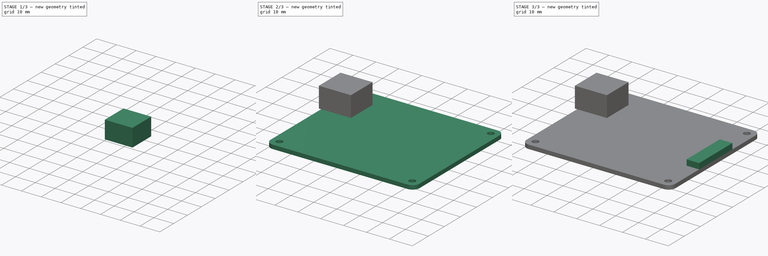
[diagram: build sequence overview — one tinted view per stage of 3, left to right]
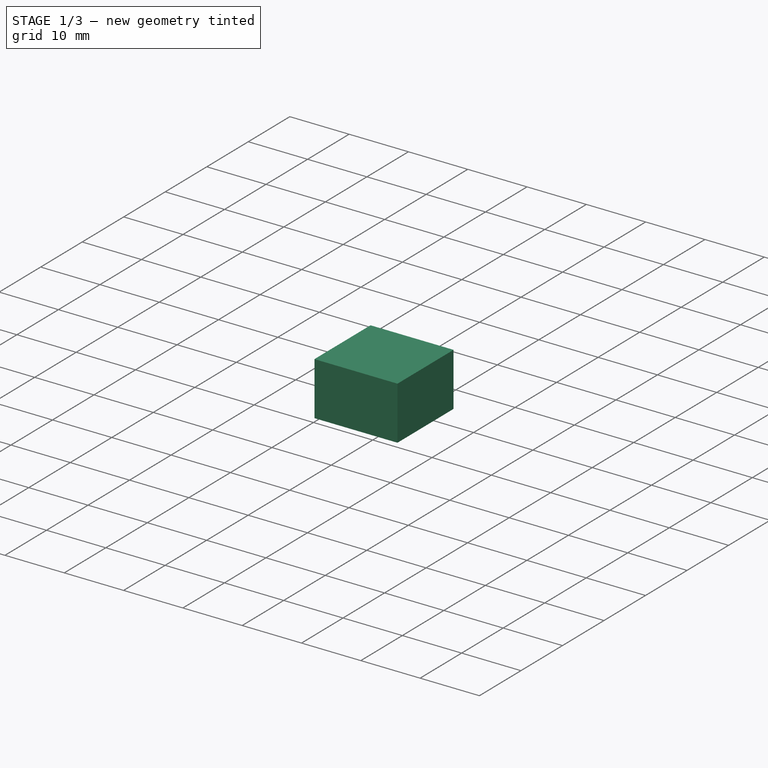
[diagram: stage 1 of 3 — iso view after this stage's code; geometry added in this stage tinted green]
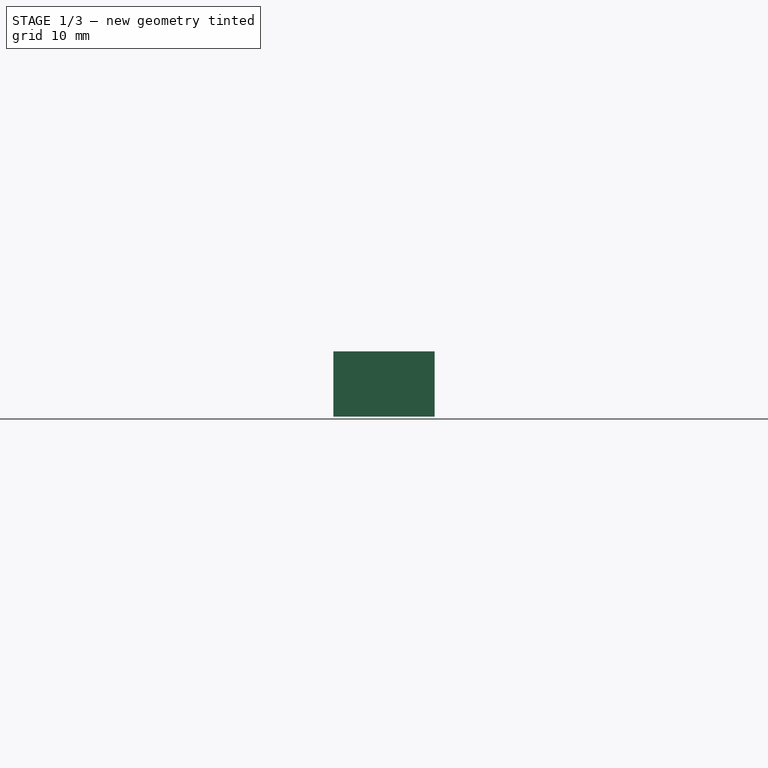
[diagram: stage 1 of 3 — front view after this stage's code; geometry added in this stage tinted green]
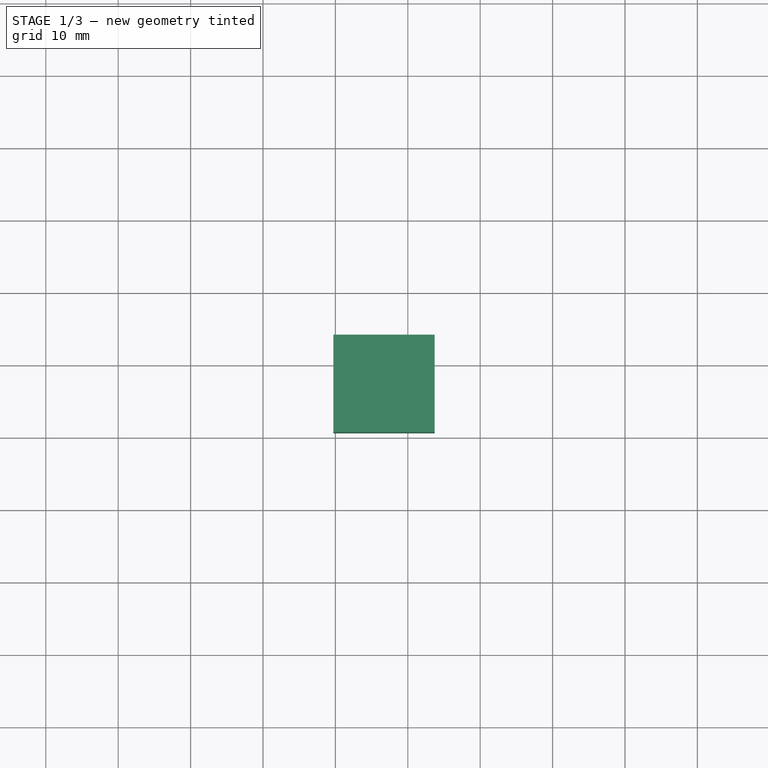
[diagram: stage 1 of 3 — top view after this stage's code; geometry added in this stage tinted green]
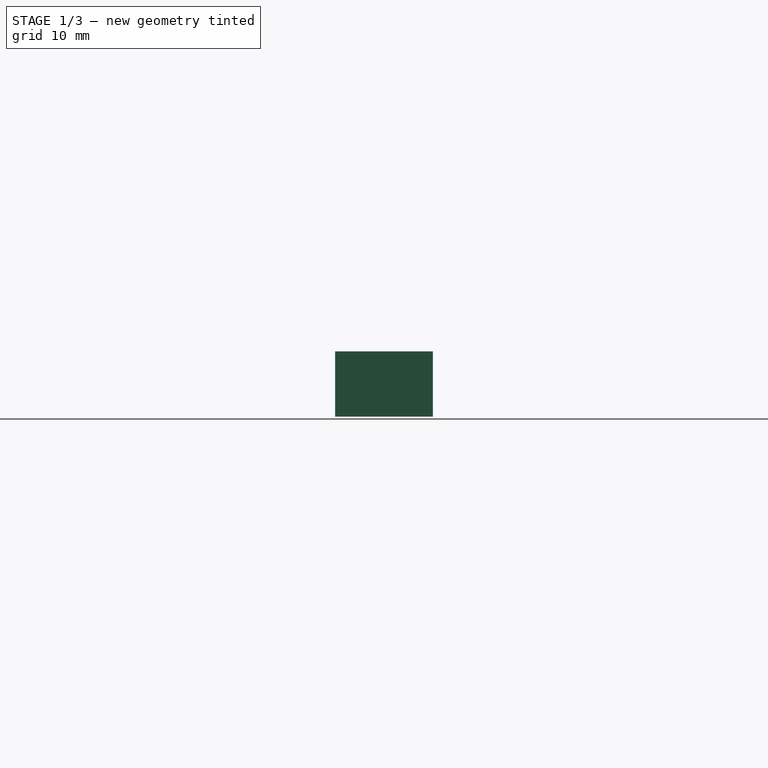
[diagram: stage 1 of 3 — right view after this stage's code; geometry added in this stage tinted green]
FCSTD DOCUMENT  (FreeCAD 0.18R15619 (Git))
Label: touchscreen-board
License: All rights reserved
LicenseURL: http://en.wikipedia.org/wiki/All_rights_reserved
objects: Sketcher::SketchObject×3, PartDesign::Pad×3, PartDesign::Body×3, PartDesign::ShapeBinder×2, Part::Fuse×2
note: 16 computed .brp shape members not serialized (recipe doc carries the construction recipe); baked Part::Feature solids carry a one-line shape summary decoded from their .brp

FEATURE [Sketcher::SketchObject] Sketch002  label="sk-board"
  MapMode = 5
  Support = -> [XY_Plane005]
  sketch-geometry (12):
    g0: LineSegment StartX=-6.2873 StartY=32.162 StartZ=0 EndX=52.7127 EndY=32.162 EndZ=0
    g1: LineSegment StartX=55.7127 StartY=29.162 StartZ=0 EndX=55.7127 EndY=-20.838 EndZ=0
    g2: LineSegment StartX=52.7127 StartY=-23.838 StartZ=0 EndX=-6.2873 EndY=-23.838 EndZ=0
    g3: LineSegment StartX=-9.2873 StartY=-20.838 StartZ=0 EndX=-9.2873 EndY=29.162 EndZ=0
    g4: ArcOfCircle CenterX=-6.2873 CenterY=29.162 CenterZ=0 NormalX=0 NormalY=0 NormalZ=1 AngleXU=0 Radius=3 StartAngle=1.5708 EndAngle=3.14159
    g5: ArcOfCircle CenterX=52.7127 CenterY=29.162 CenterZ=0 NormalX=0 NormalY=0 NormalZ=1 AngleXU=0 Radius=3 StartAngle=0 EndAngle=1.5708
    g6: ArcOfCircle CenterX=52.7127 CenterY=-20.838 CenterZ=0 NormalX=0 NormalY=0 NormalZ=1 AngleXU=0 Radius=3 StartAngle=4.71239 EndAngle=6.28319
    g7: ArcOfCircle CenterX=-6.2873 CenterY=-20.838 CenterZ=0 NormalX=0 NormalY=0 NormalZ=1 AngleXU=0 Radius=3 StartAngle=3.14159 EndAngle=4.71239
    g8: Circle CenterX=-5.7873 CenterY=28.662 CenterZ=0 NormalX=0 NormalY=0 NormalZ=1 AngleXU=0 Radius=1.375
    g9: Circle CenterX=-5.7873 CenterY=-20.338 CenterZ=0 NormalX=0 NormalY=0 NormalZ=1 AngleXU=0 Radius=1.375
    g10: Circle CenterX=52.2127 CenterY=-20.338 CenterZ=0 NormalX=0 NormalY=0 NormalZ=1 AngleXU=0 Radius=1.375
    g11: Circle CenterX=52.2127 CenterY=28.662 CenterZ=0 NormalX=0 NormalY=0 NormalZ=1 AngleXU=0 Radius=1.375
  constraints (30):
    c: Horizontal(g0)
    c: Horizontal(g2)
    c: Vertical(g1)
    c: Vertical(g3)
    c: Tangent(g0,g4) = 1.5708
    c: Tangent(g3,g4) = 1.5708
    c: Tangent(g0,g5) = 1.5708
    c: Tangent(g1,g5) = 1.5708
    c: Tangent(g1,g6) = 1.5708
    c: Tangent(g2,g6) = 1.5708
    c: Tangent(g2,g7) = 1.5708
    c: Tangent(g3,g7) = 1.5708
    c: Radius(g4) = 3
    c: Equal(g4,g5)
    c: Equal(g4,g6)
    c: Equal(g4,g7)
    c: Distance(g1,g3) = 65
    c: Distance(g0,g2) = 56
    c: Radius(g8) = 1.375
    c: Distance(g8,g3) = 3.5
    c: Distance(g8,g0) = 3.5
    c: Equal(g8,g9)
    c: Equal(g9,g10)
    c: Equal(g10,g11)
    c: Vertical(g8,g9)
    c: Horizontal(g8,g11)
    c: Vertical(g11,g10)
    c: Horizontal(g10,g9)
    c: Distance(g10,g1) = 3.5
    c: Distance(g10,g2) = 3.5
FEATURE [PartDesign::Pad] Pad
  Length = 1.75
  Length2 = 100
  Profile = -> Sketch002
  Type = 0
FEATURE [PartDesign::Body] Body002  label="board"
  Group = -> [Sketch002,Pad]
  Origin = -> Origin005
  Tip = -> Pad
FEATURE [PartDesign::ShapeBinder] ShapeBinder  label="BoardTopBinder-usb"
  Placement = pos=(0,0,1.75) rot=(0,0,1;0rad)
  Support = -> [Pad]
  TraceSupport = false
FEATURE [Sketcher::SketchObject] Sketch  label="sk-usb"
  ExternalGeometry = -> [ShapeBinder]
  MapMode = 5
  Placement = pos=(0,0,1.75) rot=(0,0,1;0rad)
  Support = -> [ShapeBinder]
  sketch-geometry (4):
    g0: LineSegment StartX=-10.2873 StartY=24.162 StartZ=0 EndX=3.7127 EndY=24.162 EndZ=0
    g1: LineSegment StartX=3.7127 StartY=24.162 StartZ=0 EndX=3.7127 EndY=10.662 EndZ=0
    g2: LineSegment StartX=3.7127 StartY=10.662 StartZ=0 EndX=-10.2873 EndY=10.662 EndZ=0
    g3: LineSegment StartX=-10.2873 StartY=10.662 StartZ=0 EndX=-10.2873 EndY=24.162 EndZ=0
  constraints (12):
    c: Coincident(g0,g1)
    c: Coincident(g1,g2)
    c: Coincident(g2,g3)
    c: Coincident(g3,g0)
    c: Horizontal(g0)
    c: Horizontal(g2)
    c: Vertical(g1)
    c: Vertical(g3)
    c: Distance(g1) = 13.5
    c: Distance(g0) = 14
    c: Distance(g0,g-4) = 1
    c: Distance(g0,g-3) = 8
FEATURE [PartDesign::Pad] Pad001  label="pad-usb"
  Length = 9
  Length2 = 100
  Placement = pos=(0,0,1.75) rot=(0,0,1;0rad)
  Profile = -> Sketch
  Type = 0
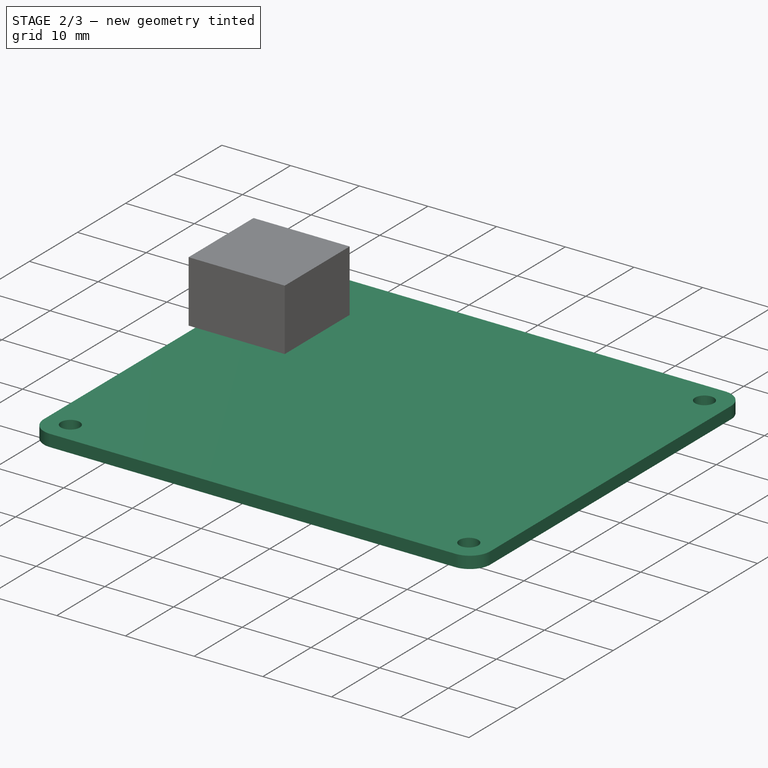
[diagram: stage 2 of 3 — iso view after this stage's code; geometry added in this stage tinted green]
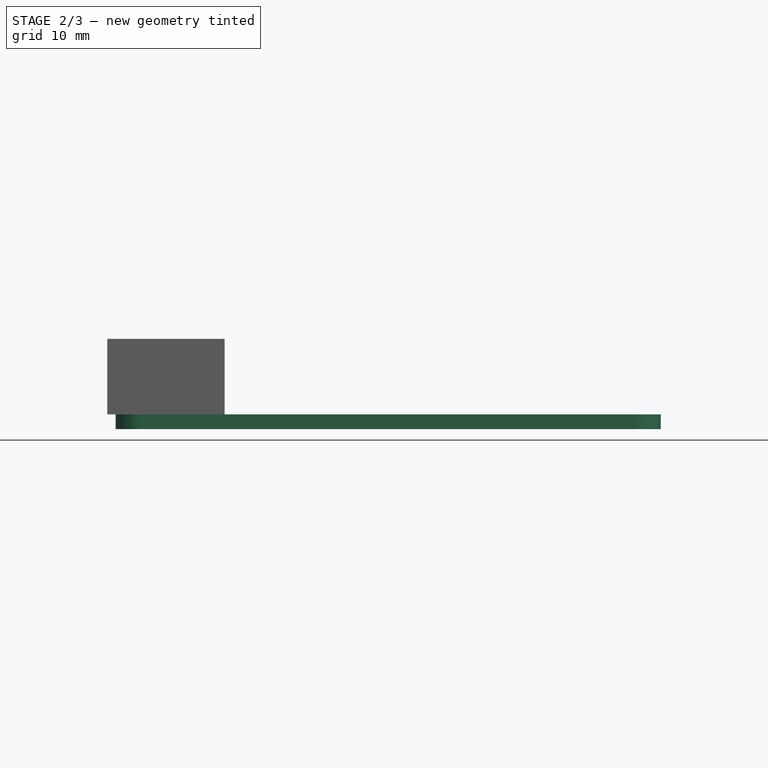
[diagram: stage 2 of 3 — front view after this stage's code; geometry added in this stage tinted green]
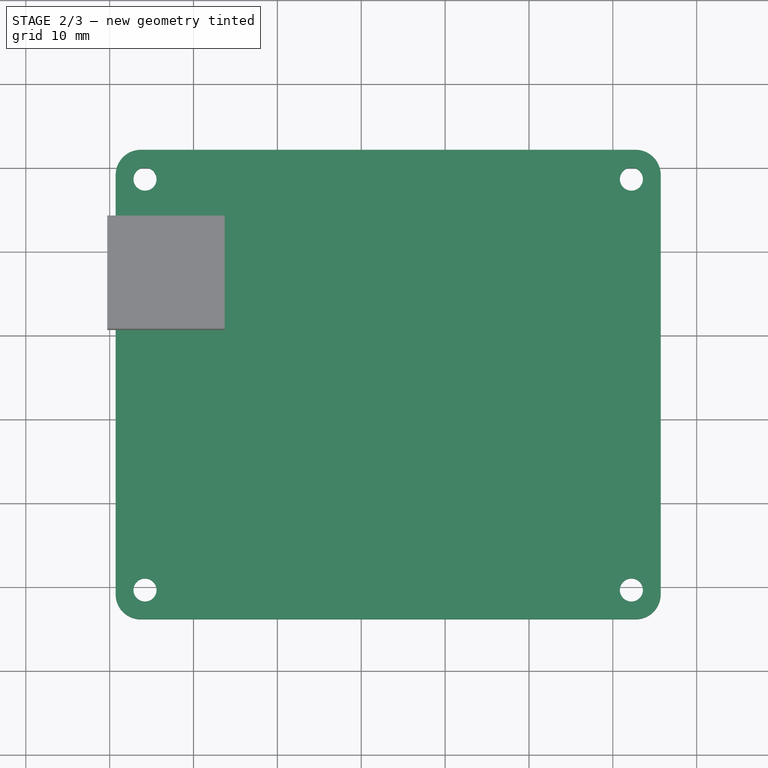
[diagram: stage 2 of 3 — top view after this stage's code; geometry added in this stage tinted green]
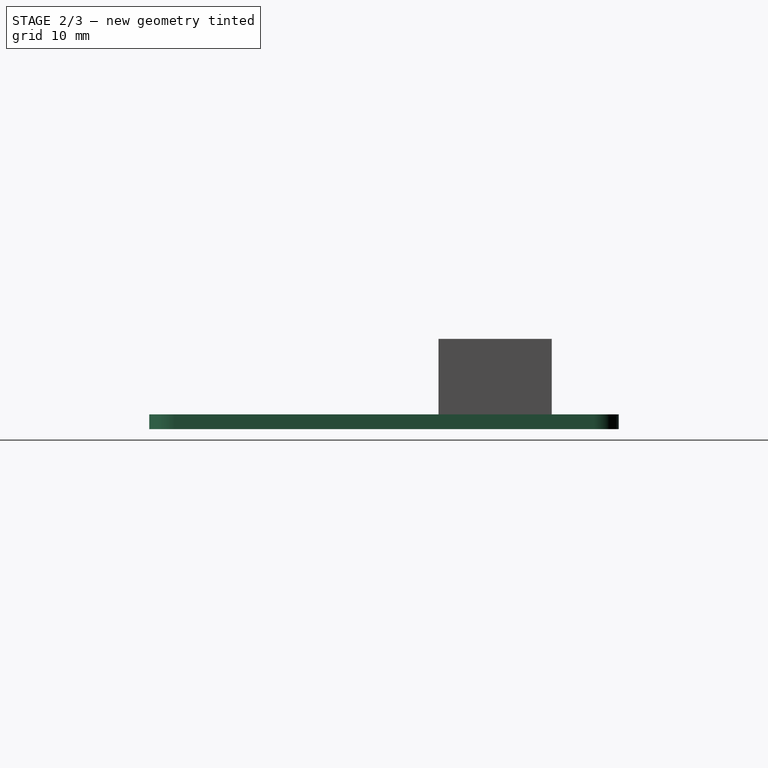
[diagram: stage 2 of 3 — right view after this stage's code; geometry added in this stage tinted green]
FEATURE [PartDesign::Body] Body003  label="displayport"
  Group = -> [ShapeBinder001,Sketch003,Pad002]
  Origin = -> Origin006
  Tip = -> Pad002
FEATURE [Part::Fuse] Fusion
  Base = -> Body002
  Tool = -> Body
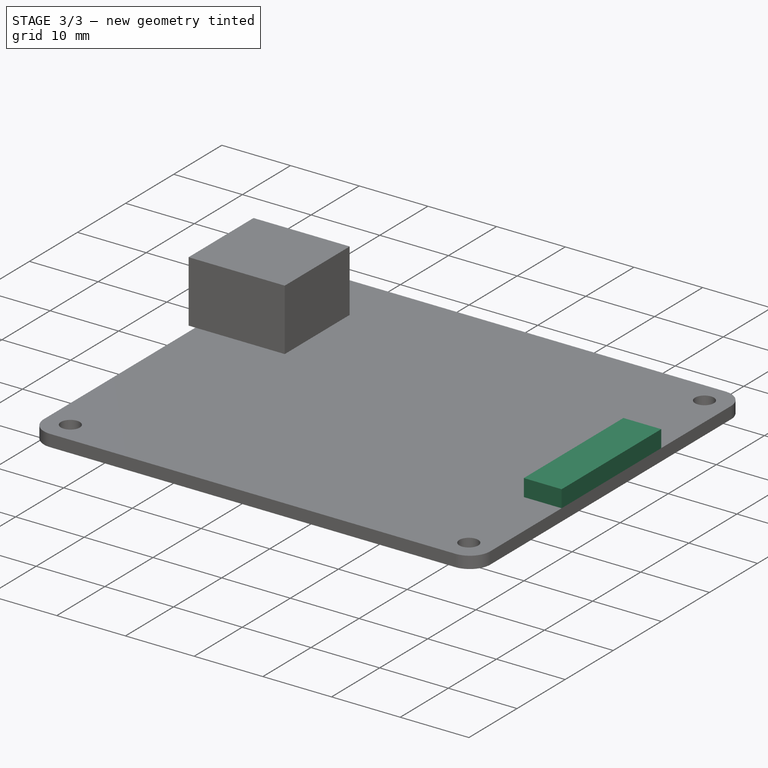
[diagram: stage 3 of 3 — iso view after this stage's code; geometry added in this stage tinted green]
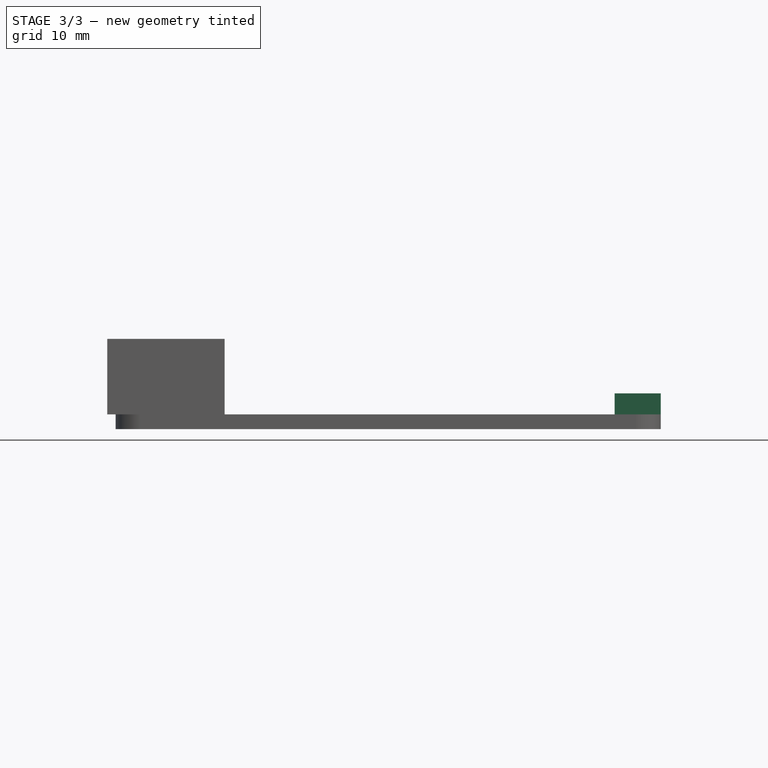
[diagram: stage 3 of 3 — front view after this stage's code; geometry added in this stage tinted green]
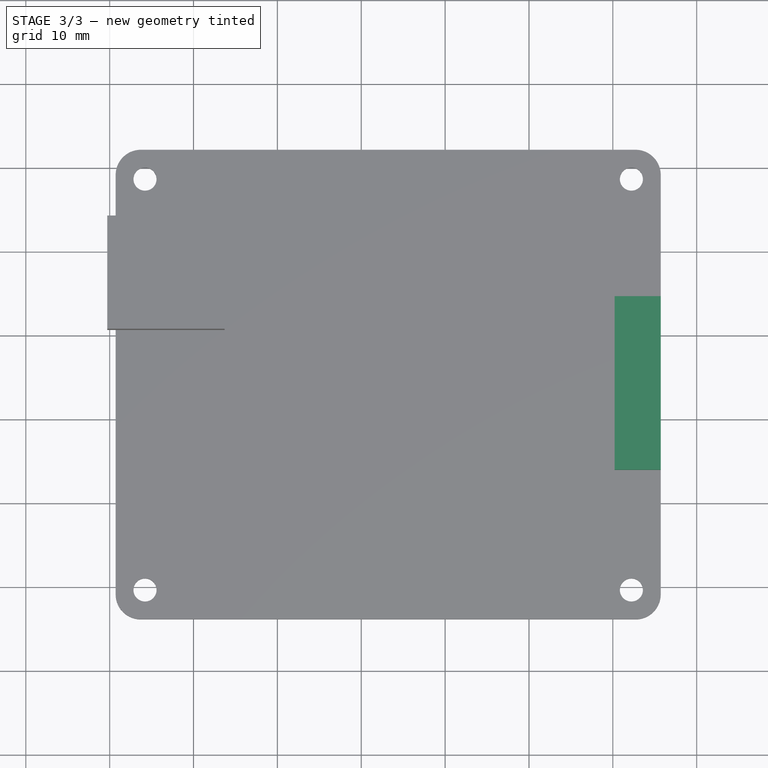
[diagram: stage 3 of 3 — top view after this stage's code; geometry added in this stage tinted green]
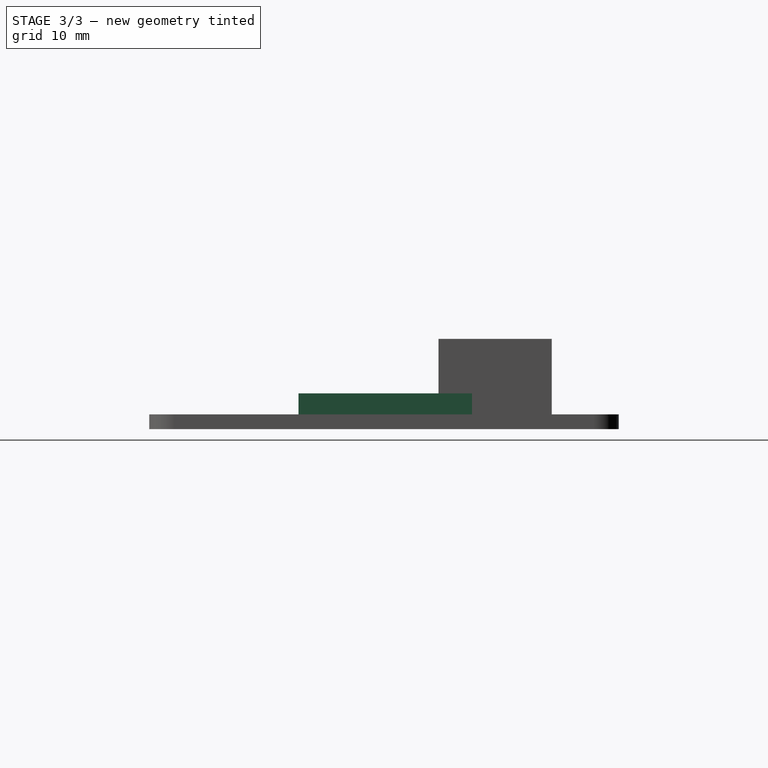
[diagram: stage 3 of 3 — right view after this stage's code; geometry added in this stage tinted green]
FEATURE [PartDesign::Body] Body  label="usb"
  Group = -> [ShapeBinder,Sketch,Pad001]
  Origin = -> Origin
  Tip = -> Pad001
FEATURE [PartDesign::ShapeBinder] ShapeBinder001
  Placement = pos=(0,0,1.75) rot=(0,0,1;0rad)
  Support = -> [Pad]
  TraceSupport = false
FEATURE [Sketcher::SketchObject] Sketch003
  ExternalGeometry = -> [ShapeBinder001]
  MapMode = 5
  Placement = pos=(0,0,1.75) rot=(0,0,1;0rad)
  Support = -> [ShapeBinder001]
  sketch-geometry (4):
    g0: LineSegment StartX=50.2127 StartY=14.662 StartZ=0 EndX=55.7127 EndY=14.662 EndZ=0
    g1: LineSegment StartX=55.7127 StartY=14.662 StartZ=0 EndX=55.7127 EndY=-6.038 EndZ=0
    g2: LineSegment StartX=55.7127 StartY=-6.038 StartZ=0 EndX=50.2127 EndY=-6.038 EndZ=0
    g3: LineSegment StartX=50.2127 StartY=-6.038 StartZ=0 EndX=50.2127 EndY=14.662 EndZ=0
  constraints (12):
    c: Coincident(g0,g1)
    c: Coincident(g1,g2)
    c: Coincident(g2,g3)
    c: Coincident(g3,g0)
    c: Horizontal(g0)
    c: Horizontal(g2)
    c: Vertical(g1)
    c: Vertical(g3)
    c: PointOnObject(g0,g-3)
    c: Distance(g3) = 20.7
    c: Distance(g0) = 5.5
    c: Distance(g0,g-4) = 17.5
FEATURE [PartDesign::Pad] Pad002
  Length = 2.5
  Length2 = 100
  Placement = pos=(0,0,1.75) rot=(0,0,1;0rad)
  Profile = -> Sketch003
  Type = 0
FEATURE [Part::Fuse] Fusion001
  Base = -> Fusion
  Tool = -> Body003
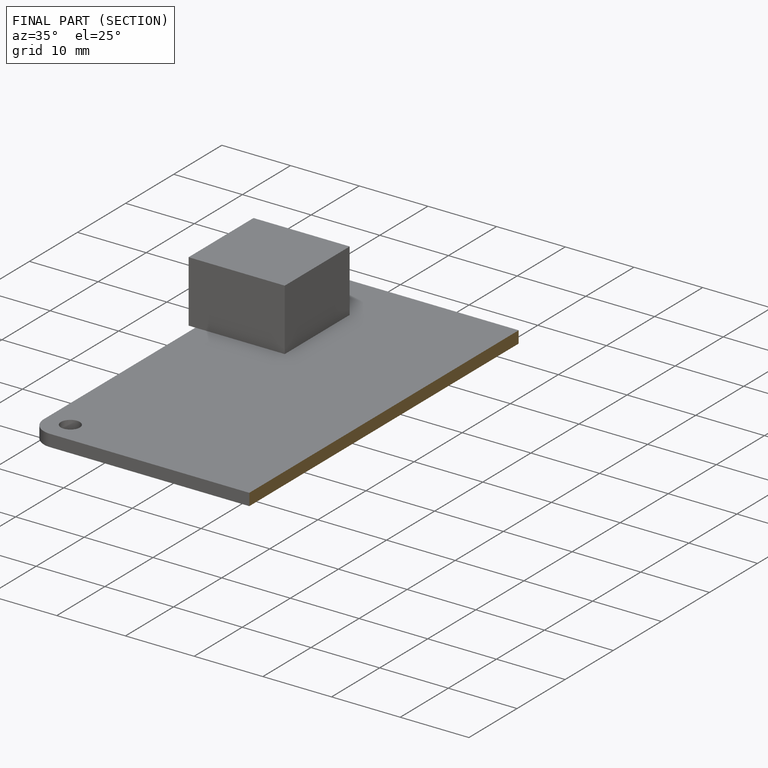
[diagram: finished part — half-section view (interior)]
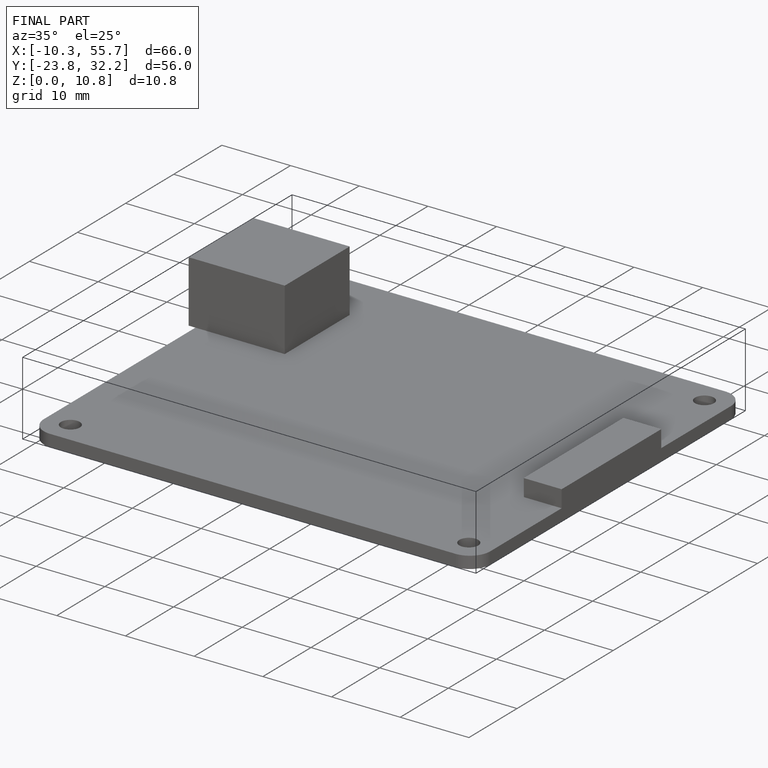
[diagram: finished part — iso view with bounding-box wireframe]
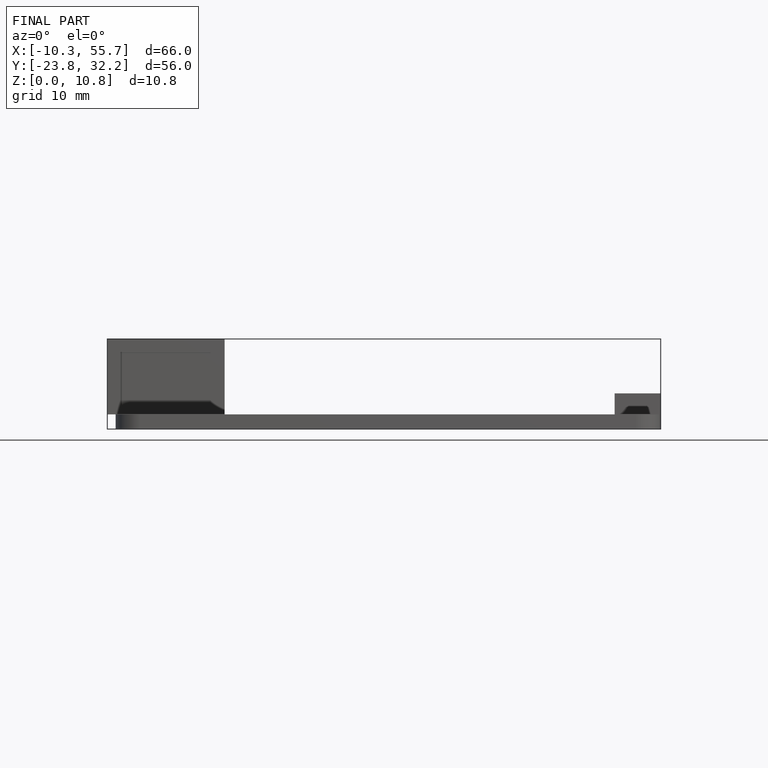
[diagram: finished part — front view with bounding-box wireframe]
